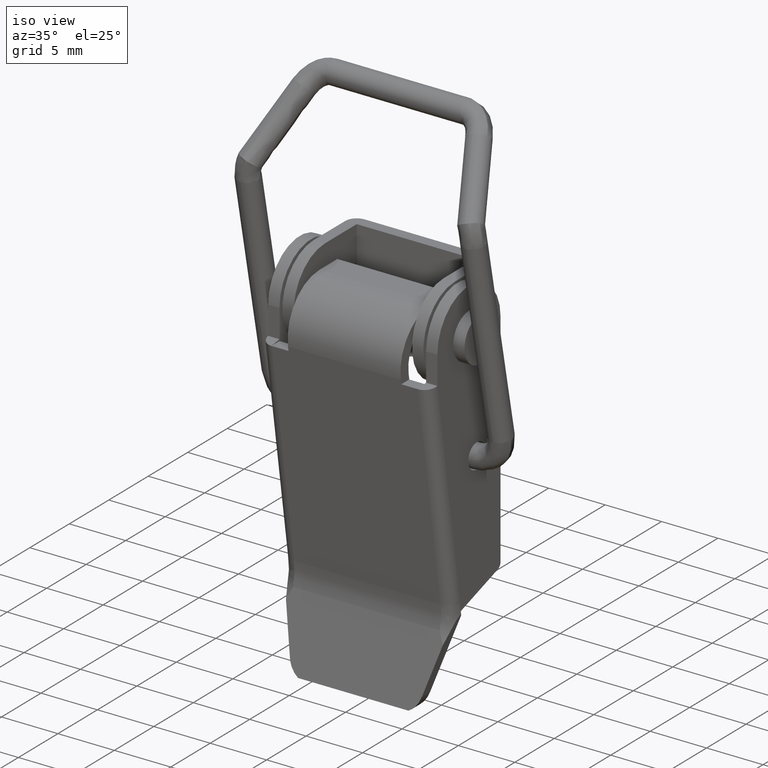
[diagram: clean part render]
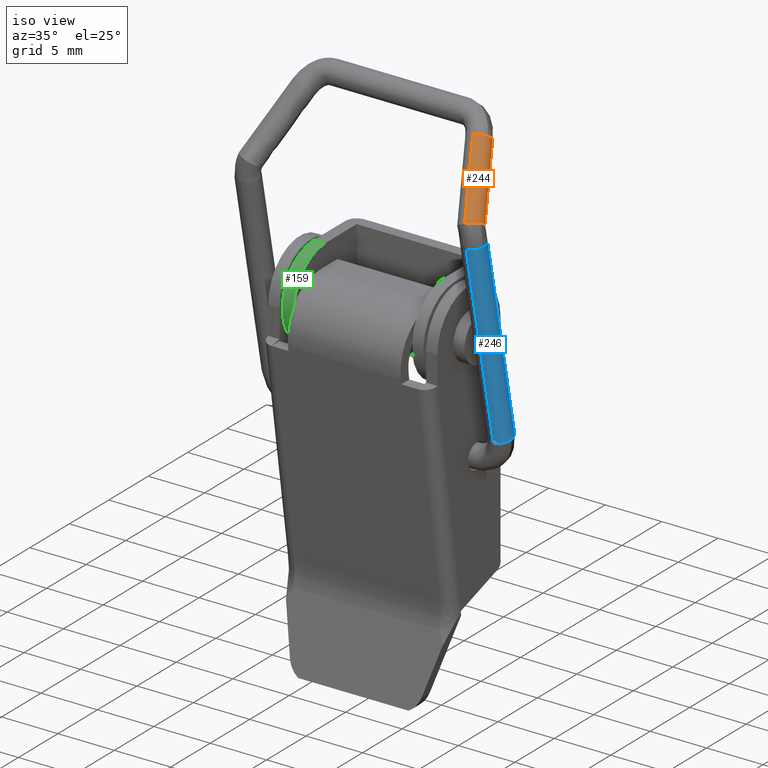
[diagram: same view with three faces highlighted in distinct colors, each labeled with its STEP entity id]
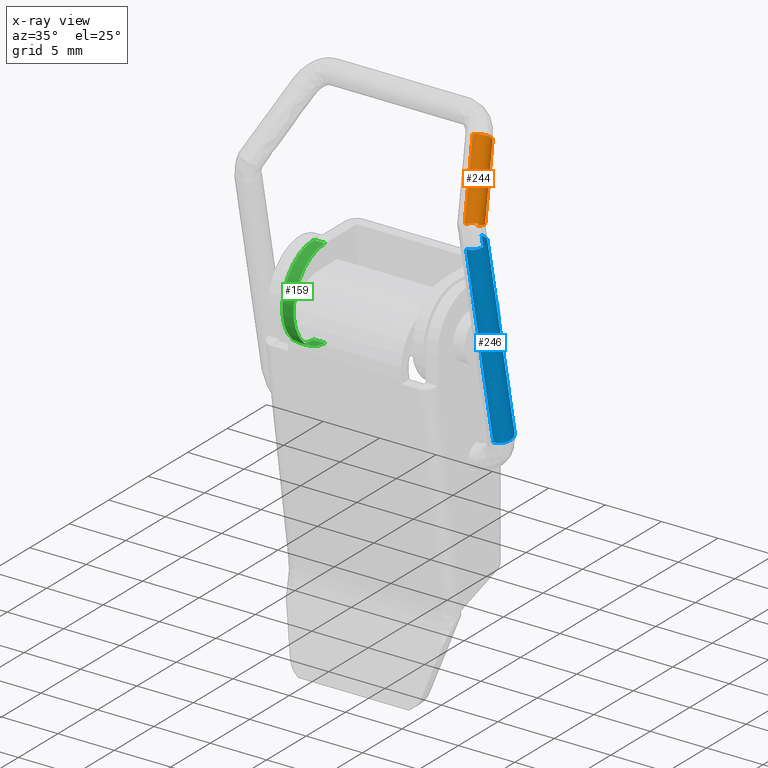
[diagram: x-ray of the same camera — body ghosted, the three highlighted faces saturated]
A machine part, iso view with three faces highlighted in distinct colors.
The next image is the same camera in x-ray (body ghosted, the three faces saturated) — at least one of them is partly hidden behind the body in this view.
Their STEP definitions:

[orange] entity #244 — the highlighted cylindrical surface (edge-blend (fillet) strip) has radius 1 mm, axis along (0.3069, -0.5878, -0.7486).
#244=ADVANCED_FACE('',(#1223),#1222,.T.);
#1222=CYLINDRICAL_SURFACE('',#3170,1.00000000000E+00);
#1223=FACE_OUTER_BOUND('',#3171,.T.);
#3167=CARTESIAN_POINT('',(9.88288521509E+00,-5.17936228560E+00,-6.42786778026E+00));
#3168=DIRECTION('',(3.06903911002E-01,-5.87774189076E-01,-7.48552932041E-01));
#3169=DIRECTION('',(-1.45123966005E-13,7.86509482238E-01,-6.17578201000E-01));
#3170=AXIS2_PLACEMENT_3D('',#3167,#3168,#3169);
#3171=EDGE_LOOP('',(#3789,#3790,#3791,#3792,#3793,#3794));
#3789=ORIENTED_EDGE('',*,*,#4116,.T.);
#3790=ORIENTED_EDGE('',*,*,#4120,.T.);
#3791=ORIENTED_EDGE('',*,*,#4129,.F.);
#3792=ORIENTED_EDGE('',*,*,#4127,.F.);
#3793=ORIENTED_EDGE('',*,*,#4124,.F.);
#3794=ORIENTED_EDGE('',*,*,#4130,.T.);
#4116=EDGE_CURVE('',#5900,#5893,#5901,.T.);
#4120=EDGE_CURVE('',#5893,#5920,#5927,.T.);
#4124=EDGE_CURVE('',#5947,#5954,#5955,.T.);
#4127=EDGE_CURVE('',#5954,#5973,#5974,.T.);
#4129=EDGE_CURVE('',#5973,#5920,#5986,.T.);
#4130=EDGE_CURVE('',#5947,#5900,#5992,.T.);
#5893=VERTEX_POINT('',#7308);
#5900=VERTEX_POINT('',#7325);
#5901=(BOUNDED_CURVE() B_SPLINE_CURVE(3,(#7326,#7327,#7328,#7329,#7330,#7331,#7332),.UNSPECIFIED.,.F.,.F.) B_SPLINE_CURVE_WITH_KNOTS((4,1,1,1,4),(-1.81839431377E-01,-1.43507521792E-01,-1.00458781735E-01,-5.26394588360E-02,-0.00000000000E+00),.UNSPECIFIED.) CURVE() GEOMETRIC_REPRESENTATION_ITEM() RATIONAL_B_SPLINE_CURVE((1.00000000000E+00,1.00000000000E+00,1.00000000000E+00,1.00000000000E+00,1.00000000000E+00,1.00000000000E+00,1.00000000000E+00)) REPRESENTATION_ITEM('') );
#5920=VERTEX_POINT('',#7356);
#5927=(BOUNDED_CURVE() B_SPLINE_CURVE(3,(#7366,#7367,#7368,#7369,#7370,#7371,#7372,#7373),.UNSPECIFIED.,.F.,.F.) B_SPLINE_CURVE_WITH_KNOTS((4,1,1,1,1,4),(-1.00000000000E+00,-8.75927588653E-01,-7.97085056435E-01,-7.52254122148E-01,-7.09200392782E-01,-6.82749640171E-01),.UNSPECIFIED.) CURVE() GEOMETRIC_REPRESENTATION_ITEM() RATIONAL_B_SPLINE_CURVE((1.00000000000E+00,1.00000000000E+00,1.00000000000E+00,1.00000000000E+00,1.00000000000E+00,1.00000000000E+00,1.00000000000E+00,1.00000000000E+00)) REPRESENTATION_ITEM('') );
#5947=VERTEX_POINT('',#7391);
#5954=VERTEX_POINT('',#7401);
#5955=(BOUNDED_CURVE() B_SPLINE_CURVE(3,(#7402,#7403,#7404,#7405,#7406,#7407,#7408),.UNSPECIFIED.,.F.,.F.) B_SPLINE_CURVE_WITH_KNOTS((4,1,1,1,4),(-9.62299095287E-01,-9.58631672647E-01,-9.08371362587E-01,-8.49283479382E-01,-7.81402636594E-01),.UNSPECIFIED.) CURVE() GEOMETRIC_REPRESENTATION_ITEM() RATIONAL_B_SPLINE_CURVE((1.00000000000E+00,1.00000000000E+00,1.00000000000E+00,1.00000000000E+00,1.00000000000E+00,1.00000000000E+00,1.00000000000E+00)) REPRESENTATION_ITEM('') );
#5973=VERTEX_POINT('',#7423);
#5974=(BOUNDED_CURVE() B_SPLINE_CURVE(3,(#7424,#7425,#7426,#7427,#7428,#7429,#7430,#7431,#7432),.UNSPECIFIED.,.F.,.F.) B_SPLINE_CURVE_WITH_KNOTS((4,1,1,1,1,1,4),(-1.78140263659E+00,-1.71276058243E+00,-1.66086663876E+00,-1.60206106953E+00,-1.54840620899E+00,-1.49995541531E+00,-1.46223617761E+00),.UNSPECIFIED.) CURVE() GEOMETRIC_REPRESENTATION_ITEM() RATIONAL_B_SPLINE_CURVE((1.00000000000E+00,1.00000000000E+00,1.00000000000E+00,1.00000000000E+00,1.00000000000E+00,1.00000000000E+00,1.00000000000E+00,1.00000000000E+00,1.00000000000E+00)) REPRESENTATION_ITEM('') );
#5986=(BOUNDED_CURVE() B_SPLINE_CURVE(1,(#7442,#7443),.UNSPECIFIED.,.F.,.F.) B_SPLINE_CURVE_WITH_KNOTS((2,2),(9.07554440196E-02,8.63379575032E-01),.UNSPECIFIED.) CURVE() GEOMETRIC_REPRESENTATION_ITEM() RATIONAL_B_SPLINE_CURVE((1.00000000000E+00,1.00000000000E+00)) REPRESENTATION_ITEM('') );
#5992=(BOUNDED_CURVE() B_SPLINE_CURVE(1,(#7444,#7445),.UNSPECIFIED.,.F.,.F.) B_SPLINE_CURVE_WITH_KNOTS((2,2),(8.34328492157E-02,9.15808887523E-01),.UNSPECIFIED.) CURVE() GEOMETRIC_REPRESENTATION_ITEM() RATIONAL_B_SPLINE_CURVE((7.50000000000E-01,7.50000000000E-01)) REPRESENTATION_ITEM('') );
#7308=CARTESIAN_POINT('',(1.06525665483E+01,-5.15803057713E+00,-5.72019314115E+00));
#7325=CARTESIAN_POINT('',(9.84126994731E+00,-5.88593586060E+00,-5.70848799107E+00));
#7326=CARTESIAN_POINT('',(9.84123343535E+00,-5.88594442077E+00,-5.70849893904E+00));
#7327=CARTESIAN_POINT('',(9.91684235492E+00,-5.86822260675E+00,-5.68582593759E+00));
#7328=CARTESIAN_POINT('',(1.00749996949E+01,-5.81102848735E+00,-5.64693221271E+00));
#7329=CARTESIAN_POINT('',(1.03054862836E+01,-5.66316855179E+00,-5.62102973921E+00));
#7330=CARTESIAN_POINT('',(1.05164698606E+01,-5.44206363887E+00,-5.64067395845E+00));
#7331=CARTESIAN_POINT('',(1.06164448364E+01,-5.25842983868E+00,-5.68672102230E+00));
#7332=CARTESIAN_POINT('',(1.06525665483E+01,-5.15803057713E+00,-5.72019314115E+00));
#7356=CARTESIAN_POINT('',(9.70926321558E+00,-4.06033800992E+00,-6.62197271469E+00));
#7366=CARTESIAN_POINT('',(1.06525665483E+01,-5.15803057713E+00,-5.72019314115E+00));
#7367=CARTESIAN_POINT('',(1.07377062515E+01,-4.92138721581E+00,-5.79908769270E+00));
#7368=CARTESIAN_POINT('',(1.07291737607E+01,-4.49641693795E+00,-6.01301359078E+00));
#7369=CARTESIAN_POINT('',(1.04117932235E+01,-4.15621500482E+00,-6.29152526815E+00));
#7370=CARTESIAN_POINT('',(1.01222300736E+01,-4.04370967167E+00,-6.46327810831E+00));
#7371=CARTESIAN_POINT('',(9.89964971886E+00,-4.02806297205E+00,-6.56110383658E+00));
#7372=CARTESIAN_POINT('',(9.76152479576E+00,-4.04844253994E+00,-6.60681974841E+00));
#7373=CARTESIAN_POINT('',(9.70926321558E+00,-4.06033800992E+00,-6.62197271469E+00));
#7391=CARTESIAN_POINT('',(7.74727318133E+00,-1.87480080881E+00,-6.01717939957E-01));
#7401=CARTESIAN_POINT('',(8.61820076043E+00,-1.26186862747E+00,-7.58280163378E-01));
#7402=CARTESIAN_POINT('',(7.74727318133E+00,-1.87480080881E+00,-6.01717939957E-01));
#7403=CARTESIAN_POINT('',(7.75457769450E+00,-1.87337589933E+00,-5.99898400844E-01));
#7404=CARTESIAN_POINT('',(7.86201335184E+00,-1.85144966542E+00,-5.73945908874E-01));
#7405=CARTESIAN_POINT('',(8.08720593375E+00,-1.77567735202E+00,-5.44509303630E-01));
#7406=CARTESIAN_POINT('',(8.39963729150E+00,-1.56882232096E+00,-5.90249217755E-01));
#7407=CARTESIAN_POINT('',(8.55999611214E+00,-1.37206502328E+00,-6.89656381287E-01));
#7408=CARTESIAN_POINT('',(8.61817258195E+00,-1.26180987346E+00,-7.58209382150E-01));
#7423=CARTESIAN_POINT('',(7.76557830913E+00,-3.38593459526E-01,-1.88064972404E+00));
#7424=CARTESIAN_POINT('',(8.61817258195E+00,-1.26180987346E+00,-7.58209382150E-01));
#7425=CARTESIAN_POINT('',(8.67700143892E+00,-1.15031832953E+00,-8.27531131920E-01));
#7426=CARTESIAN_POINT('',(8.73082620463E+00,-9.45446220862E-01,-9.76926217549E-01));
#7427=CARTESIAN_POINT('',(8.67844991567E+00,-6.68019258448E-01,-1.23057455040E+00));
#7428=CARTESIAN_POINT('',(8.51653225845E+00,-4.65576587807E-01,-1.46647373429E+00));
#7429=CARTESIAN_POINT('',(8.27262299451E+00,-3.41688884662E-01,-1.67024521317E+00));
#7430=CARTESIAN_POINT('',(8.01210987173E+00,-3.06679147116E-01,-1.80624689908E+00));
#7431=CARTESIAN_POINT('',(7.84071354299E+00,-3.24037426755E-01,-1.86201113800E+00));
#7432=CARTESIAN_POINT('',(7.76557830913E+00,-3.38593459526E-01,-1.88064972404E+00));
#7442=CARTESIAN_POINT('',(7.76557902843E+00,-3.37844436647E-01,-1.88123758497E+00));
#7443=CARTESIAN_POINT('',(9.70926321676E+00,-4.06033658049E+00,-6.62197384144E+00));
#7444=CARTESIAN_POINT('',(7.74715763675E+00,-1.87558324285E+00,-6.01150550746E-01));
#7445=CARTESIAN_POINT('',(9.84115920810E+00,-5.88595923157E+00,-5.70851790497E+00));

[blue] entity #246 — the highlighted cylindrical surface (edge-blend (fillet) strip) has radius 1 mm, axis along (-0, 0.2011, -0.9796).
#246=ADVANCED_FACE('',(#1243),#1242,.T.);
#1242=CYLINDRICAL_SURFACE('',#3180,1.00000000000E+00);
#1243=FACE_OUTER_BOUND('',#3181,.T.);
#3177=CARTESIAN_POINT('',(9.99999999992E+00,-1.51337899287E+00,-2.42813365698E+01));
#3178=DIRECTION('',(-1.50318359025E-12,2.01064153610E-01,-9.79578075568E-01));
#3179=DIRECTION('',(2.46239156531E-12,9.79578075568E-01,2.01064153610E-01));
#3180=AXIS2_PLACEMENT_3D('',#3177,#3178,#3179);
#3181=EDGE_LOOP('',(#3801,#3802,#3803,#3804,#3805,#3806));
#3801=ORIENTED_EDGE('',*,*,#4107,.F.);
#3802=ORIENTED_EDGE('',*,*,#4111,.F.);
#3803=ORIENTED_EDGE('',*,*,#4131,.F.);
#3804=ORIENTED_EDGE('',*,*,#4121,.T.);
#3805=ORIENTED_EDGE('',*,*,#4114,.T.);
#3806=ORIENTED_EDGE('',*,*,#4132,.T.);
#4107=EDGE_CURVE('',#5832,#5839,#5840,.T.);
#4111=EDGE_CURVE('',#5859,#5832,#5866,.T.);
#4114=EDGE_CURVE('',#5886,#5878,#5887,.T.);
#4121=EDGE_CURVE('',#5933,#5886,#5934,.T.);
#4131=EDGE_CURVE('',#5933,#5859,#5998,.T.);
#4132=EDGE_CURVE('',#5878,#5839,#6004,.T.);
#5832=VERTEX_POINT('',#7238);
#5839=VERTEX_POINT('',#7245);
#5840=(BOUNDED_CURVE() B_SPLINE_CURVE(3,(#7246,#7247,#7248,#7249,#7250,#7251),.UNSPECIFIED.,.F.,.F.) B_SPLINE_CURVE_WITH_KNOTS((4,2,4),(-1.00000000000E+00,-8.75000000000E-01,-7.82248253162E-01),.UNSPECIFIED.) CURVE() GEOMETRIC_REPRESENTATION_ITEM() RATIONAL_B_SPLINE_CURVE((1.00000000000E+00,1.00000000000E+00,1.00000000000E+00,1.00000000000E+00,1.00000000000E+00,1.00000000000E+00)) REPRESENTATION_ITEM('') );
#5859=VERTEX_POINT('',#7267);
#5866=(BOUNDED_CURVE() B_SPLINE_CURVE(3,(#7274,#7275,#7276,#7277,#7278,#7279,#7280,#7281),.UNSPECIFIED.,.F.,.F.) B_SPLINE_CURVE_WITH_KNOTS((4,2,2,4),(-2.82248076010E-01,-2.50000000000E-01,-1.25000000000E-01,-0.00000000000E+00),.UNSPECIFIED.) CURVE() GEOMETRIC_REPRESENTATION_ITEM() RATIONAL_B_SPLINE_CURVE((1.00000000000E+00,1.00000000000E+00,1.00000000000E+00,1.00000000000E+00,1.00000000000E+00,1.00000000000E+00,1.00000000000E+00,1.00000000000E+00)) REPRESENTATION_ITEM('') );
#5878=VERTEX_POINT('',#7292);
#5886=VERTEX_POINT('',#7301);
#5887=(BOUNDED_CURVE() B_SPLINE_CURVE(3,(#7302,#7303,#7304,#7305,#7306,#7307),.UNSPECIFIED.,.F.,.F.) B_SPLINE_CURVE_WITH_KNOTS((4,1,1,4),(0.00000000000E+00,8.15090143463E-02,1.53896111351E-01,2.17122168740E-01),.UNSPECIFIED.) CURVE() GEOMETRIC_REPRESENTATION_ITEM() RATIONAL_B_SPLINE_CURVE((1.00000000000E+00,1.00000000000E+00,1.00000000000E+00,1.00000000000E+00,1.00000000000E+00,1.00000000000E+00)) REPRESENTATION_ITEM('') );
#5933=VERTEX_POINT('',#7374);
#5934=(BOUNDED_CURVE() B_SPLINE_CURVE(3,(#7375,#7376,#7377,#7378,#7379,#7380,#7381),.UNSPECIFIED.,.F.,.F.) B_SPLINE_CURVE_WITH_KNOTS((4,1,1,1,4),(7.17333909481E-01,7.39048096637E-01,8.17617240434E-01,9.04620619704E-01,1.00000000000E+00),.UNSPECIFIED.) CURVE() GEOMETRIC_REPRESENTATION_ITEM() RATIONAL_B_SPLINE_CURVE((1.00000000000E+00,1.00000000000E+00,1.00000000000E+00,1.00000000000E+00,1.00000000000E+00,1.00000000000E+00,1.00000000000E+00)) REPRESENTATION_ITEM('') );
#5998=(BOUNDED_CURVE() B_SPLINE_CURVE(1,(#7446,#7447),.UNSPECIFIED.,.F.,.F.) B_SPLINE_CURVE_WITH_KNOTS((2,2),(8.64201709621E-02,9.16657634838E-01),.UNSPECIFIED.) CURVE() GEOMETRIC_REPRESENTATION_ITEM() RATIONAL_B_SPLINE_CURVE((1.00000000000E+00,1.00000000000E+00)) REPRESENTATION_ITEM('') );
#6004=(BOUNDED_CURVE() B_SPLINE_CURVE(1,(#7448,#7449),.UNSPECIFIED.,.F.,.F.) B_SPLINE_CURVE_WITH_KNOTS((2,2),(8.34057603780E-02,9.16662034317E-01),.UNSPECIFIED.) CURVE() GEOMETRIC_REPRESENTATION_ITEM() RATIONAL_B_SPLINE_CURVE((7.50000000000E-01,7.50000000000E-01)) REPRESENTATION_ITEM('') );
#7238=CARTESIAN_POINT('',(1.09795596602E+01,-1.71042120770E+00,-2.43217993606E+01));
#7245=CARTESIAN_POINT('',(9.99999999992E+00,-2.49295724967E+00,-2.44823998404E+01));
#7246=CARTESIAN_POINT('',(1.09795596602E+01,-1.71042120770E+00,-2.43217993606E+01));
#7247=CARTESIAN_POINT('',(1.09268977051E+01,-1.96162743952E+00,-2.43733848918E+01));
#7248=CARTESIAN_POINT('',(1.07689898558E+01,-2.19005093578E+00,-2.44202919677E+01));
#7249=CARTESIAN_POINT('',(1.03857529693E+01,-2.43754211161E+00,-2.44711146358E+01));
#7250=CARTESIAN_POINT('',(1.01881873271E+01,-2.49336416868E+00,-2.44825777849E+01));
#7251=CARTESIAN_POINT('',(9.99999999992E+00,-2.49295724967E+00,-2.44823998404E+01));
#7267=CARTESIAN_POINT('',(1.00000021196E+01,-5.34375847636E-01,-2.40802969996E+01));
#7274=CARTESIAN_POINT('',(1.00000021196E+01,-5.34375847636E-01,-2.40802969996E+01));
#7275=CARTESIAN_POINT('',(1.00674967520E+01,-5.34129178095E-01,-2.40802463399E+01));
#7276=CARTESIAN_POINT('',(1.01349941836E+01,-5.40533595104E-01,-2.40815614894E+01));
#7277=CARTESIAN_POINT('',(1.04576019706E+01,-6.05427399370E-01,-2.40948874888E+01));
#7278=CARTESIAN_POINT('',(1.06907919519E+01,-7.60107562543E-01,-2.41266512416E+01));
#7279=CARTESIAN_POINT('',(1.09789891093E+01,-1.18831978040E+00,-2.42145851530E+01));
#7280=CARTESIAN_POINT('',(1.10322216154E+01,-1.45921497588E+00,-2.42702138294E+01));
#7281=CARTESIAN_POINT('',(1.09795596602E+01,-1.71042120770E+00,-2.43217993606E+01));
#7292=CARTESIAN_POINT('',(9.99990846103E+00,-5.94385013853E+00,-7.66976032349E+00));
#7301=CARTESIAN_POINT('',(1.09782850292E+01,-5.16209827377E+00,-7.53572943580E+00));
#7302=CARTESIAN_POINT('',(1.09782850292E+01,-5.16209827377E+00,-7.53572943580E+00));
#7303=CARTESIAN_POINT('',(1.09430756790E+01,-5.32710218832E+00,-7.56435337481E+00));
#7304=CARTESIAN_POINT('',(1.07932502547E+01,-5.62035696629E+00,-7.61475763947E+00));
#7305=CARTESIAN_POINT('',(1.04144984426E+01,-5.88789114426E+00,-7.66070624558E+00));
#7306=CARTESIAN_POINT('',(1.01321617297E+01,-5.94400924134E+00,-7.66984287551E+00));
#7307=CARTESIAN_POINT('',(9.99993897404E+00,-5.94385017664E+00,-7.66976034277E+00));
#7374=CARTESIAN_POINT('',(1.00000000124E+01,-3.97223872477E+00,-7.32845982960E+00));
#7375=CARTESIAN_POINT('',(1.00000000124E+01,-3.97223872477E+00,-7.32845982960E+00));
#7376=CARTESIAN_POINT('',(1.00453850533E+01,-3.97225863342E+00,-7.32826674444E+00));
#7377=CARTESIAN_POINT('',(1.02550172830E+01,-3.98637028211E+00,-7.32987877431E+00));
#7378=CARTESIAN_POINT('',(1.06301843036E+01,-4.13510971122E+00,-7.35499713808E+00));
#7379=CARTESIAN_POINT('',(1.09826861892E+01,-4.57444674277E+00,-7.43313812097E+00));
#7380=CARTESIAN_POINT('',(1.10194859447E+01,-4.96901568969E+00,-7.50223456917E+00));
#7381=CARTESIAN_POINT('',(1.09782850292E+01,-5.16209827377E+00,-7.53572943580E+00));
#7446=CARTESIAN_POINT('',(9.99999999995E+00,-3.97221005738E+00,-7.32845391457E+00));
#7447=CARTESIAN_POINT('',(9.99999999993E+00,-5.33819318772E-01,-2.40801827648E+01));
#7448=CARTESIAN_POINT('',(9.99999999995E+00,-5.94385025300E+00,-7.66976035944E+00));
#7449=CARTESIAN_POINT('',(9.99999999992E+00,-2.49295724967E+00,-2.44823998404E+01));

[green] entity #159 — the highlighted cylindrical surface (partial cylindrical patch) has radius 4 mm, axis along (1, 0, 0).
#159=ADVANCED_FACE('',(#362),#361,.T.);
#361=CYLINDRICAL_SURFACE('',#1400,4.00000000000E+00);
#362=FACE_OUTER_BOUND('',#1401,.T.);
#1397=CARTESIAN_POINT('',(9.93750000000E+02,-5.00000000000E+00,-4.00000000000E+00));
#1398=DIRECTION('',(1.00000000000E+00,-0.00000000000E+00,-0.00000000000E+00));
#1399=DIRECTION('',(-0.00000000000E+00,-0.00000000000E+00,-1.00000000000E+00));
#1400=AXIS2_PLACEMENT_3D('',#1397,#1398,#1399);
#1401=EDGE_LOOP('',(#3343,#3344,#3345,#3346));
#3343=ORIENTED_EDGE('',*,*,#3899,.F.);
#3344=ORIENTED_EDGE('',*,*,#3900,.F.);
#3345=ORIENTED_EDGE('',*,*,#3901,.T.);
#3346=ORIENTED_EDGE('',*,*,#3902,.T.);
#3899=EDGE_CURVE('',#4454,#4455,#4456,.T.);
#3900=EDGE_CURVE('',#4462,#4454,#4463,.T.);
#3901=EDGE_CURVE('',#4462,#4469,#4470,.T.);
#3902=EDGE_CURVE('',#4469,#4455,#4476,.T.);
#4454=VERTEX_POINT('',#6257);
#4455=VERTEX_POINT('',#6258);
#4456=CIRCLE('',#6262,4.00000000000E+00);
#4462=VERTEX_POINT('',#6263);
#4463=LINE('',#6264,#6265);
#4469=VERTEX_POINT('',#6267);
#4470=CIRCLE('',#6271,4.00000000000E+00);
#4476=LINE('',#6272,#6273);
#6257=CARTESIAN_POINT('',(-6.25000000000E+00,-5.00000000000E+00,-8.00000000000E+00));
#6258=CARTESIAN_POINT('',(-6.25000000000E+00,-5.00000000000E+00,0.00000000000E+00));
#6259=CARTESIAN_POINT('',(-6.25000000000E+00,-5.00000000000E+00,-4.00000000000E+00));
#6260=DIRECTION('',(-1.00000000000E+00,0.00000000000E+00,0.00000000000E+00));
#6261=DIRECTION('',(-0.00000000000E+00,-0.00000000000E+00,-1.00000000000E+00));
#6262=AXIS2_PLACEMENT_3D('',#6259,#6260,#6261);
#6263=CARTESIAN_POINT('',(-5.25000000000E+00,-5.00000000000E+00,-8.00000000000E+00));
#6264=CARTESIAN_POINT('',(-5.25000000000E+00,-5.00000000000E+00,-8.00000000000E+00));
#6265=VECTOR('',#6266,1.00000000000E+00);
#6266=DIRECTION('',(-1.00000000000E+00,0.00000000000E+00,0.00000000000E+00));
#6267=CARTESIAN_POINT('',(-5.25000000000E+00,-5.00000000000E+00,0.00000000000E+00));
#6268=CARTESIAN_POINT('',(-5.25000000000E+00,-5.00000000000E+00,-4.00000000000E+00));
#6269=DIRECTION('',(-1.00000000000E+00,0.00000000000E+00,0.00000000000E+00));
#6270=DIRECTION('',(-0.00000000000E+00,-0.00000000000E+00,-1.00000000000E+00));
#6271=AXIS2_PLACEMENT_3D('',#6268,#6269,#6270);
#6272=CARTESIAN_POINT('',(-5.25000000000E+00,-5.00000000000E+00,0.00000000000E+00));
#6273=VECTOR('',#6274,1.00000000000E+00);
#6274=DIRECTION('',(-1.00000000000E+00,0.00000000000E+00,0.00000000000E+00));